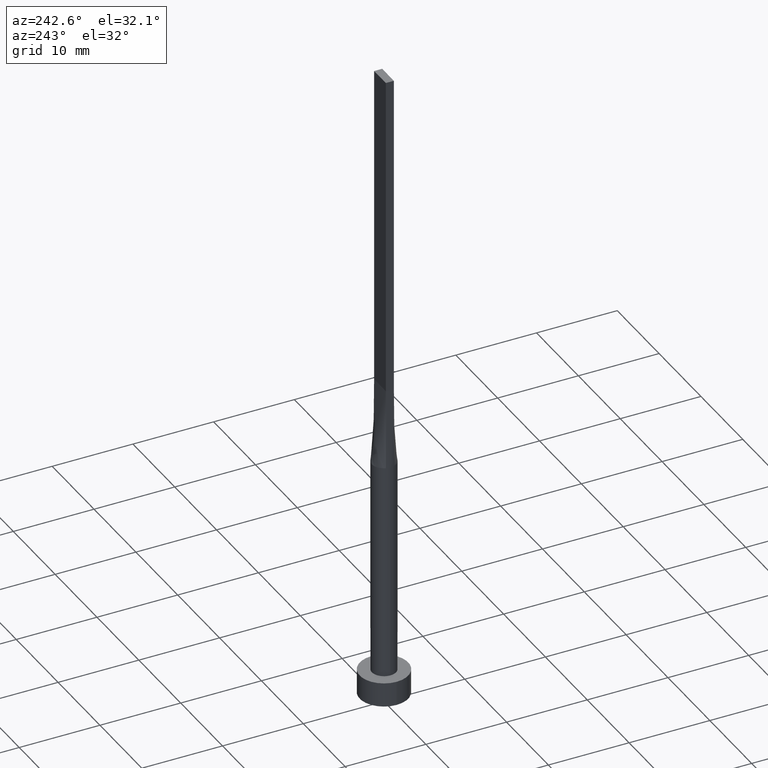
[diagram: clean part render]
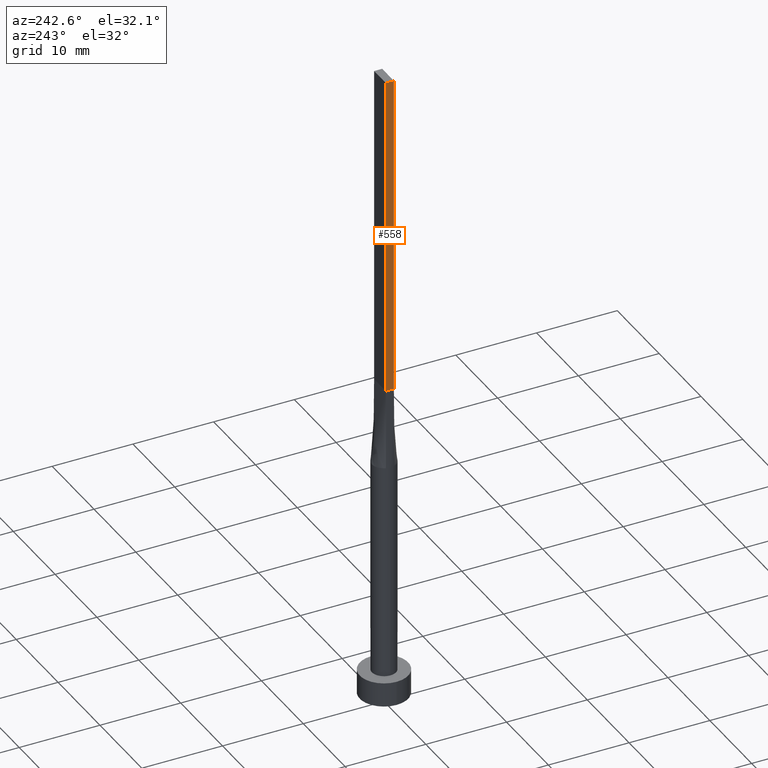
[diagram: same view with one face highlighted and labeled with its STEP entity id]
A machine part, auxiliary view. The second image highlights one B-rep face of the part: STEP entity #558.
In plain terms, the highlighted planar face has unit normal (1, -0, 0).
Its self-contained STEP definition (entity closure, byte-faithful):
#4 = PLANE ( 'NONE',  #535 ) ;
#15 = DIRECTION ( 'NONE',  ( -0.000000000000000000, -0.000000000000000000, -1.000000000000000000 ) ) ;
#18 = LINE ( 'NONE', #519, #230 ) ;
#22 = DIRECTION ( 'NONE',  ( -2.168404344971009361E-16, -1.000000000000000000, 0.000000000000000000 ) ) ;
#28 = ORIENTED_EDGE ( 'NONE', *, *, #197, .F. ) ;
#56 = ORIENTED_EDGE ( 'NONE', *, *, #216, .T. ) ;
#62 = EDGE_CURVE ( 'NONE', #355, #483, #516, .T. ) ;
#75 = DIRECTION ( 'NONE',  ( 1.000000000000000000, -2.168404344971009361E-16, 0.000000000000000000 ) ) ;
#97 = ORIENTED_EDGE ( 'NONE', *, *, #207, .T. ) ;
#102 = EDGE_LOOP ( 'NONE', ( #97, #190, #28, #56 ) ) ;
#110 = LINE ( 'NONE', #156, #543 ) ;
#115 = LINE ( 'NONE', #244, #436 ) ;
#137 = FACE_OUTER_BOUND ( 'NONE', #102, .T. ) ;
#142 = CARTESIAN_POINT ( 'NONE',  ( -1.399999999999999689, 0.5000000000000002220, 80.00000000000000000 ) ) ;
#156 = CARTESIAN_POINT ( 'NONE',  ( -1.399999999999999689, 0.5000000000000002220, 80.00000000000000000 ) ) ;
#181 = CARTESIAN_POINT ( 'NONE',  ( -1.399999999999999689, 0.5000000000000002220, 80.00000000000000000 ) ) ;
#190 = ORIENTED_EDGE ( 'NONE', *, *, #62, .F. ) ;
#197 = EDGE_CURVE ( 'NONE', #435, #355, #110, .T. ) ;
#207 = EDGE_CURVE ( 'NONE', #335, #483, #115, .T. ) ;
#216 = EDGE_CURVE ( 'NONE', #435, #335, #18, .T. ) ;
#230 = VECTOR ( 'NONE', #556, 1000.000000000000000 ) ;
#244 = CARTESIAN_POINT ( 'NONE',  ( -1.399999999999999689, 0.5000000000000002220, 40.00000000000000000 ) ) ;
#272 = CARTESIAN_POINT ( 'NONE',  ( -1.399999999999999689, 0.5000000000000002220, 40.00000000000000000 ) ) ;
#310 = VECTOR ( 'NONE', #15, 1000.000000000000000 ) ;
#335 = VERTEX_POINT ( 'NONE', #272 ) ;
#355 = VERTEX_POINT ( 'NONE', #433 ) ;
#383 = DIRECTION ( 'NONE',  ( -2.168404344971009361E-16, -1.000000000000000000, 0.000000000000000000 ) ) ;
#411 = CARTESIAN_POINT ( 'NONE',  ( -1.399999999999999911, -0.4999999999999995559, 40.00000000000000000 ) ) ;
#433 = CARTESIAN_POINT ( 'NONE',  ( -1.399999999999999911, -0.4999999999999995559, 80.00000000000000000 ) ) ;
#435 = VERTEX_POINT ( 'NONE', #142 ) ;
#436 = VECTOR ( 'NONE', #383, 1000.000000000000000 ) ;
#437 = DIRECTION ( 'NONE',  ( 2.168404344971009361E-16, 1.000000000000000000, 0.000000000000000000 ) ) ;
#467 = CARTESIAN_POINT ( 'NONE',  ( -1.399999999999999911, -0.4999999999999995559, 80.00000000000000000 ) ) ;
#483 = VERTEX_POINT ( 'NONE', #411 ) ;
#516 = LINE ( 'NONE', #467, #310 ) ;
#519 = CARTESIAN_POINT ( 'NONE',  ( -1.399999999999999689, 0.5000000000000002220, 80.00000000000000000 ) ) ;
#535 = AXIS2_PLACEMENT_3D ( 'NONE', #181, #75, #437 ) ;
#543 = VECTOR ( 'NONE', #22, 1000.000000000000000 ) ;
#556 = DIRECTION ( 'NONE',  ( -0.000000000000000000, -0.000000000000000000, -1.000000000000000000 ) ) ;
#558 = ADVANCED_FACE ( 'NONE', ( #137 ), #4, .F. ) ;